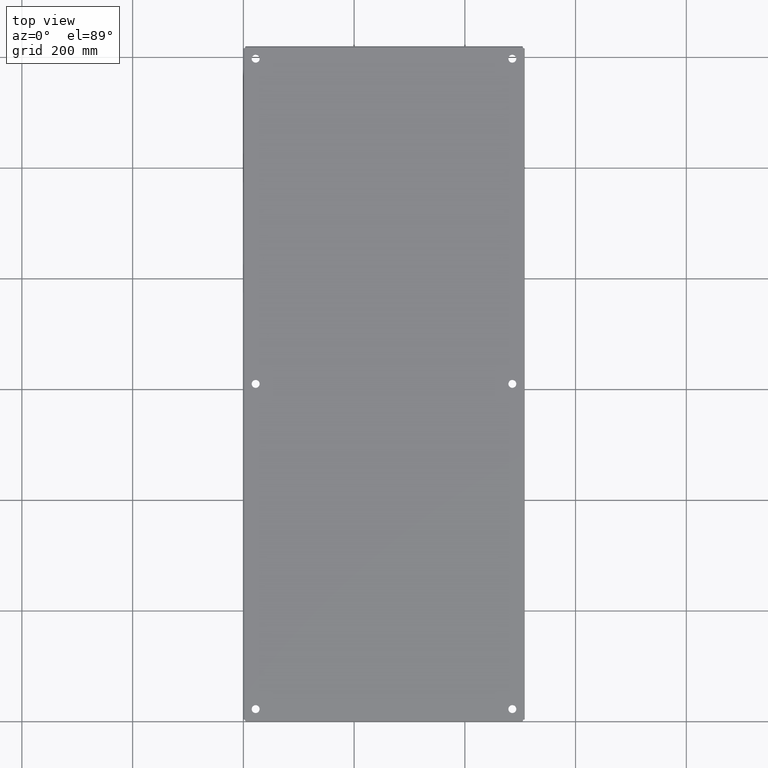
[diagram: clean part render]
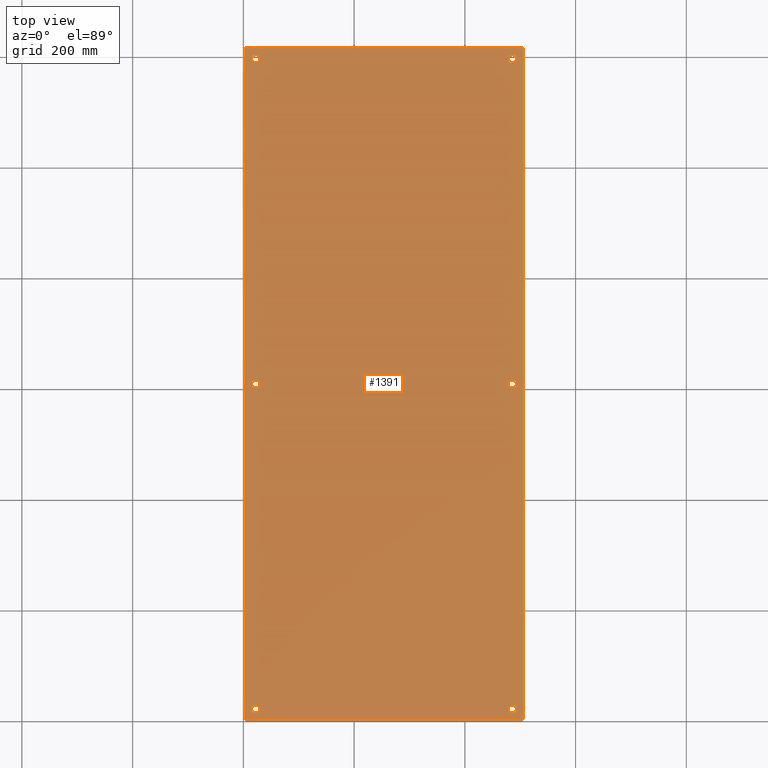
[diagram: same view with one face highlighted and labeled with its STEP entity id]
A machine part, top view. The second image highlights one B-rep face of the part: STEP entity #1391.
In plain terms, the highlighted planar face has unit normal (0, 0, 1).
Its self-contained STEP definition (entity closure, byte-faithful):
#79=CARTESIAN_POINT('',(19.406500000000001,24.000000000000011,0.09375));
#80=VERTEX_POINT('',#79);
#81=CARTESIAN_POINT('',(19.125,24.000000000000011,0.09375));
#82=DIRECTION('',(0.0,0.0,-1.0));
#83=DIRECTION('',(1.0,0.0,0.0));
#84=AXIS2_PLACEMENT_3D('',#81,#82,#83);
#85=CIRCLE('',#84,0.2815);
#86=EDGE_CURVE('',#80,#80,#85,.T.);
#107=CARTESIAN_POINT('',(1.156499999999993,24.000000000000004,0.09375));
#108=VERTEX_POINT('',#107);
#109=CARTESIAN_POINT('',(0.874999999999993,24.000000000000004,0.09375));
#110=DIRECTION('',(0.0,0.0,-1.0));
#111=DIRECTION('',(1.0,0.0,0.0));
#112=AXIS2_PLACEMENT_3D('',#109,#110,#111);
#113=CIRCLE('',#112,0.2815);
#114=EDGE_CURVE('',#108,#108,#113,.T.);
#135=CARTESIAN_POINT('',(19.406499999999994,47.125000000000021,0.09375));
#136=VERTEX_POINT('',#135);
#137=CARTESIAN_POINT('',(19.124999999999996,47.125000000000021,0.09375));
#138=DIRECTION('',(0.0,0.0,-1.0));
#139=DIRECTION('',(1.0,0.0,0.0));
#140=AXIS2_PLACEMENT_3D('',#137,#138,#139);
#141=CIRCLE('',#140,0.2815);
#142=EDGE_CURVE('',#136,#136,#141,.T.);
#163=CARTESIAN_POINT('',(1.156499999999986,47.125000000000021,0.09375));
#164=VERTEX_POINT('',#163);
#165=CARTESIAN_POINT('',(0.874999999999986,47.125000000000021,0.09375));
#166=DIRECTION('',(0.0,0.0,-1.0));
#167=DIRECTION('',(1.0,0.0,0.0));
#168=AXIS2_PLACEMENT_3D('',#165,#166,#167);
#169=CIRCLE('',#168,0.2815);
#170=EDGE_CURVE('',#164,#164,#169,.T.);
#191=CARTESIAN_POINT('',(1.156499999999976,0.875,0.09375));
#192=VERTEX_POINT('',#191);
#193=CARTESIAN_POINT('',(0.874999999999976,0.875,0.09375));
#194=DIRECTION('',(0.0,0.0,-1.0));
#195=DIRECTION('',(1.0,0.0,0.0));
#196=AXIS2_PLACEMENT_3D('',#193,#194,#195);
#197=CIRCLE('',#196,0.2815);
#198=EDGE_CURVE('',#192,#192,#197,.T.);
#219=CARTESIAN_POINT('',(19.406499999999994,0.875,0.09375));
#220=VERTEX_POINT('',#219);
#221=CARTESIAN_POINT('',(19.124999999999996,0.875,0.09375));
#222=DIRECTION('',(0.0,0.0,-1.0));
#223=DIRECTION('',(1.0,0.0,0.0));
#224=AXIS2_PLACEMENT_3D('',#221,#222,#223);
#225=CIRCLE('',#224,0.2815);
#226=EDGE_CURVE('',#220,#220,#225,.T.);
#257=CARTESIAN_POINT('',(19.890650000000001,47.890650000000001,0.09375));
#258=VERTEX_POINT('',#257);
#269=CARTESIAN_POINT('',(19.890650000000001,0.10935,0.09375));
#270=VERTEX_POINT('',#269);
#271=CARTESIAN_POINT('',(19.890650000000001,0.109350000000001,0.09375));
#272=DIRECTION('',(0.0,1.0,0.0));
#273=VECTOR('',#272,47.781300000000002);
#274=LINE('',#271,#273);
#275=EDGE_CURVE('',#270,#258,#274,.T.);
#553=CARTESIAN_POINT('',(0.109349999999985,47.890650000000008,0.09375));
#554=VERTEX_POINT('',#553);
#565=CARTESIAN_POINT('',(19.890650000000001,47.890650000000008,0.09375));
#566=DIRECTION('',(-1.0,0.0,0.0));
#567=VECTOR('',#566,19.781300000000016);
#568=LINE('',#565,#567);
#569=EDGE_CURVE('',#258,#554,#568,.T.);
#833=CARTESIAN_POINT('',(0.10935,0.10935,0.09375));
#834=VERTEX_POINT('',#833);
#845=CARTESIAN_POINT('',(0.109349999999986,47.890650000000008,0.09375));
#846=DIRECTION('',(0.0,-1.0,0.0));
#847=VECTOR('',#846,47.781300000000009);
#848=LINE('',#845,#847);
#849=EDGE_CURVE('',#554,#834,#848,.T.);
#1123=CARTESIAN_POINT('',(0.10935,0.10935,0.09375));
#1124=DIRECTION('',(1.0,0.0,0.0));
#1125=VECTOR('',#1124,19.781300000000002);
#1126=LINE('',#1123,#1125);
#1127=EDGE_CURVE('',#834,#270,#1126,.T.);
#1362=CARTESIAN_POINT('',(9.999999999999995,24.000000000000004,0.09375));
#1363=DIRECTION('',(0.0,0.0,1.0));
#1364=DIRECTION('',(1.0,0.0,0.0));
#1365=AXIS2_PLACEMENT_3D('',#1362,#1363,#1364);
#1366=PLANE('',#1365);
#1367=ORIENTED_EDGE('',*,*,#275,.T.);
#1368=ORIENTED_EDGE('',*,*,#569,.T.);
#1369=ORIENTED_EDGE('',*,*,#849,.T.);
#1370=ORIENTED_EDGE('',*,*,#1127,.T.);
#1371=EDGE_LOOP('',(#1367,#1368,#1369,#1370));
#1372=FACE_OUTER_BOUND('',#1371,.T.);
#1373=ORIENTED_EDGE('',*,*,#86,.T.);
#1374=EDGE_LOOP('',(#1373));
#1375=FACE_BOUND('',#1374,.T.);
#1376=ORIENTED_EDGE('',*,*,#114,.T.);
#1377=EDGE_LOOP('',(#1376));
#1378=FACE_BOUND('',#1377,.T.);
#1379=ORIENTED_EDGE('',*,*,#142,.T.);
#1380=EDGE_LOOP('',(#1379));
#1381=FACE_BOUND('',#1380,.T.);
#1382=ORIENTED_EDGE('',*,*,#170,.T.);
#1383=EDGE_LOOP('',(#1382));
#1384=FACE_BOUND('',#1383,.T.);
#1385=ORIENTED_EDGE('',*,*,#198,.T.);
#1386=EDGE_LOOP('',(#1385));
#1387=FACE_BOUND('',#1386,.T.);
#1388=ORIENTED_EDGE('',*,*,#226,.T.);
#1389=EDGE_LOOP('',(#1388));
#1390=FACE_BOUND('',#1389,.T.);
#1391=ADVANCED_FACE('',(#1372,#1375,#1378,#1381,#1384,#1387,#1390),#1366,.T.);